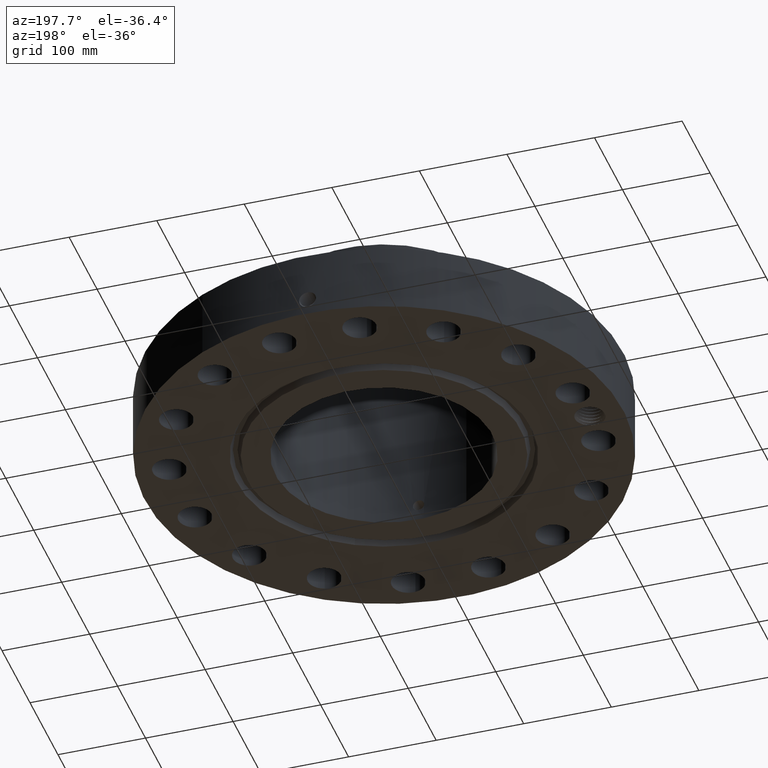
[diagram: clean part render]
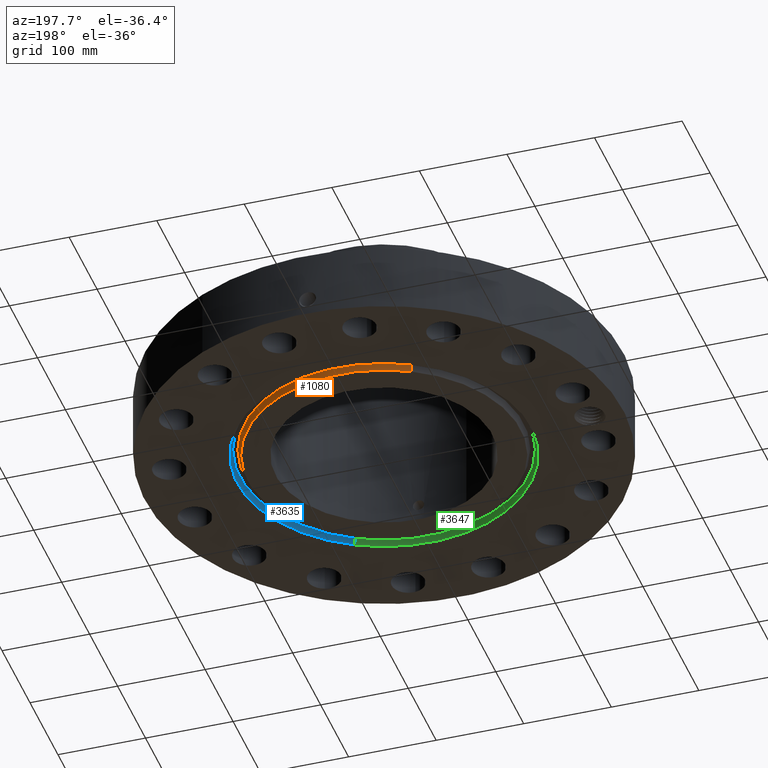
[diagram: same view with three faces highlighted in distinct colors, each labeled with its STEP entity id]
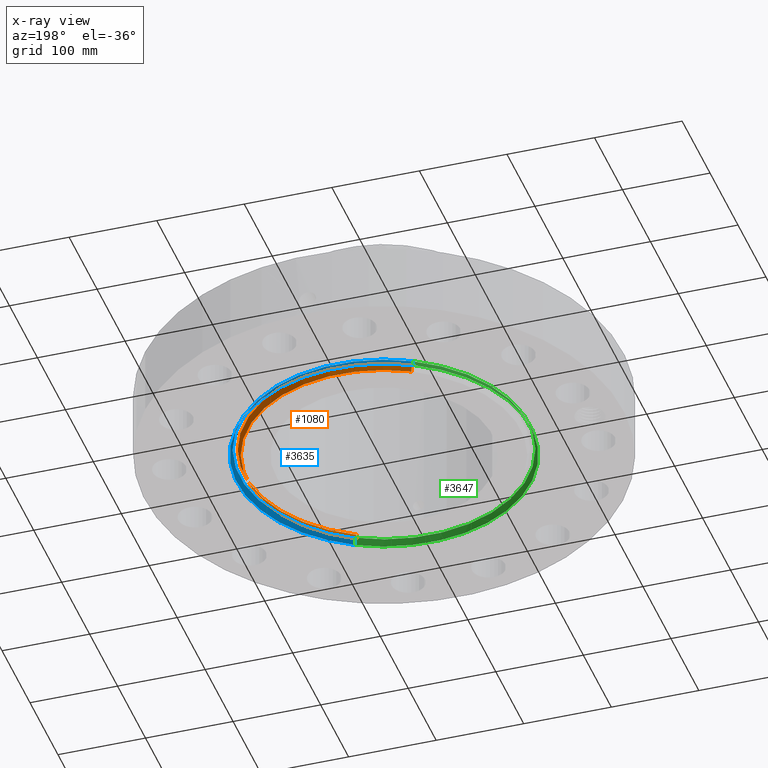
[diagram: x-ray of the same camera — body ghosted, the three highlighted faces saturated]
A machine part, auxiliary view with three faces highlighted in distinct colors.
The next image is the same camera in x-ray (body ghosted, the three faces saturated) — at least one of them is partly hidden behind the body in this view.
Their STEP definitions:

[orange] entity #1080 — the highlighted conical surface has half-angle 23 deg.
#602=AXIS2_PLACEMENT_3D('Circle Axis2P3D',#600,#601,$) ;
#1053=AXIS2_PLACEMENT_3D('Cone Axis2P3D',#1050,#1051,#1052) ;
#1064=AXIS2_PLACEMENT_3D('Circle Axis2P3D',#1062,#1063,$) ;
#600=CARTESIAN_POINT('Axis2P3D Location',(1.1189649382E-015,5.59482469102E-016,0.)) ;
#604=CARTESIAN_POINT('Vertex',(-2.94391251981,5.38879572131,0.)) ;
#606=CARTESIAN_POINT('Vertex',(2.94391251981,-5.38879572131,0.)) ;
#1050=CARTESIAN_POINT('Axis2P3D Location',(0.,0.,-0.0600000000002)) ;
#1055=CARTESIAN_POINT('Line Origine',(-2.97379932392,5.44350314927,0.146860966928)) ;
#1059=CARTESIAN_POINT('Vertex',(-3.00368612803,5.49821057724,0.293721933856)) ;
#1062=CARTESIAN_POINT('Axis2P3D Location',(0.,0.,0.293721933856)) ;
#1066=CARTESIAN_POINT('Vertex',(3.00368612803,-5.49821057724,0.293721933856)) ;
#1069=CARTESIAN_POINT('Line Origine',(2.97379932392,-5.44350314927,0.146860966928)) ;
#601=DIRECTION('Axis2P3D Direction',(0.,0.,-0.0393700787402)) ;
#1051=DIRECTION('Axis2P3D Direction',(0.,0.,0.0393700787402)) ;
#1052=DIRECTION('Axis2P3D XDirection',(-0.0188750212049,0.0345504945626,0.)) ;
#1056=DIRECTION('Vector Direction',(-0.00737505833565,0.0134999537303,0.0362403485611)) ;
#1063=DIRECTION('Axis2P3D Direction',(0.,0.,0.0393700787402)) ;
#1070=DIRECTION('Vector Direction',(0.00737505833565,-0.0134999537303,0.0362403485611)) ;
#1057=VECTOR('Line Direction',#1056,0.0393700787402) ;
#1071=VECTOR('Line Direction',#1070,0.0393700787402) ;
#1075=ORIENTED_EDGE('',*,*,#1061,.F.) ;
#1076=ORIENTED_EDGE('',*,*,#1068,.F.) ;
#1077=ORIENTED_EDGE('',*,*,#1073,.T.) ;
#1078=ORIENTED_EDGE('',*,*,#608,.F.) ;
#1080=ADVANCED_FACE('PartBody',(#1079),#1054,.T.) ;
#603=CIRCLE('generated circle',#602,6.14050000002) ;
#1065=CIRCLE('generated circle',#1064,6.26517756391) ;
#1054=CONICAL_SURFACE('Cone',#1053,6.11503151105,0.401425727959) ;
#608=EDGE_CURVE('',#605,#607,#603,.T.) ;
#1061=EDGE_CURVE('',#1060,#605,#1058,.F.) ;
#1068=EDGE_CURVE('',#1067,#1060,#1065,.T.) ;
#1073=EDGE_CURVE('',#1067,#607,#1072,.F.) ;
#1074=EDGE_LOOP('',(#1075,#1076,#1077,#1078)) ;
#1079=FACE_OUTER_BOUND('',#1074,.T.) ;
#1058=LINE('Line',#1055,#1057) ;
#1072=LINE('Line',#1069,#1071) ;
#605=VERTEX_POINT('',#604) ;
#607=VERTEX_POINT('',#606) ;
#1060=VERTEX_POINT('',#1059) ;
#1067=VERTEX_POINT('',#1066) ;

[blue] entity #3635 — the highlighted conical surface has half-angle 23 deg.
#2609=AXIS2_PLACEMENT_3D('Circle Axis2P3D',#2607,#2608,$) ;
#3608=AXIS2_PLACEMENT_3D('Cone Axis2P3D',#3605,#3606,#3607) ;
#3612=AXIS2_PLACEMENT_3D('Circle Axis2P3D',#3610,#3611,$) ;
#2607=CARTESIAN_POINT('Axis2P3D Location',(0.,0.,0.293721933856)) ;
#2611=CARTESIAN_POINT('Vertex',(3.1089894892,-5.69096708691,0.293721933856)) ;
#2613=CARTESIAN_POINT('Vertex',(-3.1089894892,5.69096708691,0.293721933856)) ;
#3605=CARTESIAN_POINT('Axis2P3D Location',(0.,0.,0.293721933856)) ;
#3610=CARTESIAN_POINT('Axis2P3D Location',(0.,0.,-3.49676543189E-017)) ;
#3614=CARTESIAN_POINT('Vertex',(-3.16876309742,5.80038194284,-3.49676543189E-017)) ;
#3616=CARTESIAN_POINT('Vertex',(3.16876309742,-5.80038194284,-3.49676543189E-017)) ;
#3619=CARTESIAN_POINT('Line Origine',(3.13887629331,-5.74567451487,0.146860966928)) ;
#3624=CARTESIAN_POINT('Line Origine',(-3.13887629331,5.74567451487,0.146860966928)) ;
#2608=DIRECTION('Axis2P3D Direction',(0.,0.,0.0393700787402)) ;
#3606=DIRECTION('Axis2P3D Direction',(-0.,-0.,-0.0393700787402)) ;
#3607=DIRECTION('Axis2P3D XDirection',(0.0188750212049,-0.0345504945626,0.)) ;
#3611=DIRECTION('Axis2P3D Direction',(0.,0.,-0.0393700787402)) ;
#3620=DIRECTION('Vector Direction',(0.00737505833565,-0.0134999537303,-0.0362403485611)) ;
#3625=DIRECTION('Vector Direction',(-0.00737505833565,0.0134999537303,-0.0362403485611)) ;
#3621=VECTOR('Line Direction',#3620,0.0393700787402) ;
#3626=VECTOR('Line Direction',#3625,0.0393700787402) ;
#3630=ORIENTED_EDGE('',*,*,#3618,.T.) ;
#3631=ORIENTED_EDGE('',*,*,#3623,.T.) ;
#3632=ORIENTED_EDGE('',*,*,#2615,.T.) ;
#3633=ORIENTED_EDGE('',*,*,#3628,.F.) ;
#3635=ADVANCED_FACE('PartBody',(#3634),#3609,.F.) ;
#2610=CIRCLE('generated circle',#2609,6.48482243614) ;
#3613=CIRCLE('generated circle',#3612,6.60950000003) ;
#3609=CONICAL_SURFACE('Cone',#3608,6.48482243614,0.401425727959) ;
#2615=EDGE_CURVE('',#2612,#2614,#2610,.T.) ;
#3618=EDGE_CURVE('',#3615,#3617,#3613,.T.) ;
#3623=EDGE_CURVE('',#3617,#2612,#3622,.F.) ;
#3628=EDGE_CURVE('',#3615,#2614,#3627,.F.) ;
#3629=EDGE_LOOP('',(#3630,#3631,#3632,#3633)) ;
#3634=FACE_OUTER_BOUND('',#3629,.T.) ;
#3622=LINE('Line',#3619,#3621) ;
#3627=LINE('Line',#3624,#3626) ;
#2612=VERTEX_POINT('',#2611) ;
#2614=VERTEX_POINT('',#2613) ;
#3615=VERTEX_POINT('',#3614) ;
#3617=VERTEX_POINT('',#3616) ;

[green] entity #3647 — the highlighted conical surface has half-angle 23 deg.
#2635=AXIS2_PLACEMENT_3D('Circle Axis2P3D',#2633,#2634,$) ;
#3608=AXIS2_PLACEMENT_3D('Cone Axis2P3D',#3605,#3606,#3607) ;
#3638=AXIS2_PLACEMENT_3D('Circle Axis2P3D',#3636,#3637,$) ;
#2611=CARTESIAN_POINT('Vertex',(3.1089894892,-5.69096708691,0.293721933856)) ;
#2613=CARTESIAN_POINT('Vertex',(-3.1089894892,5.69096708691,0.293721933856)) ;
#2633=CARTESIAN_POINT('Axis2P3D Location',(0.,0.,0.293721933856)) ;
#3605=CARTESIAN_POINT('Axis2P3D Location',(0.,0.,0.293721933856)) ;
#3614=CARTESIAN_POINT('Vertex',(-3.16876309742,5.80038194284,-3.49676543189E-017)) ;
#3616=CARTESIAN_POINT('Vertex',(3.16876309742,-5.80038194284,-3.49676543189E-017)) ;
#3619=CARTESIAN_POINT('Line Origine',(3.13887629331,-5.74567451487,0.146860966928)) ;
#3624=CARTESIAN_POINT('Line Origine',(-3.13887629331,5.74567451487,0.146860966928)) ;
#3636=CARTESIAN_POINT('Axis2P3D Location',(0.,0.,-3.49676543189E-017)) ;
#2634=DIRECTION('Axis2P3D Direction',(0.,0.,0.0393700787402)) ;
#3606=DIRECTION('Axis2P3D Direction',(-0.,-0.,-0.0393700787402)) ;
#3607=DIRECTION('Axis2P3D XDirection',(0.0188750212049,-0.0345504945626,0.)) ;
#3620=DIRECTION('Vector Direction',(0.00737505833565,-0.0134999537303,-0.0362403485611)) ;
#3625=DIRECTION('Vector Direction',(-0.00737505833565,0.0134999537303,-0.0362403485611)) ;
#3637=DIRECTION('Axis2P3D Direction',(0.,0.,-0.0393700787402)) ;
#3621=VECTOR('Line Direction',#3620,0.0393700787402) ;
#3626=VECTOR('Line Direction',#3625,0.0393700787402) ;
#3642=ORIENTED_EDGE('',*,*,#3640,.T.) ;
#3643=ORIENTED_EDGE('',*,*,#3628,.T.) ;
#3644=ORIENTED_EDGE('',*,*,#2637,.T.) ;
#3645=ORIENTED_EDGE('',*,*,#3623,.F.) ;
#3647=ADVANCED_FACE('PartBody',(#3646),#3609,.F.) ;
#2636=CIRCLE('generated circle',#2635,6.48482243614) ;
#3639=CIRCLE('generated circle',#3638,6.60950000003) ;
#3609=CONICAL_SURFACE('Cone',#3608,6.48482243614,0.401425727959) ;
#2637=EDGE_CURVE('',#2614,#2612,#2636,.T.) ;
#3623=EDGE_CURVE('',#3617,#2612,#3622,.F.) ;
#3628=EDGE_CURVE('',#3615,#2614,#3627,.F.) ;
#3640=EDGE_CURVE('',#3617,#3615,#3639,.T.) ;
#3641=EDGE_LOOP('',(#3642,#3643,#3644,#3645)) ;
#3646=FACE_OUTER_BOUND('',#3641,.T.) ;
#3622=LINE('Line',#3619,#3621) ;
#3627=LINE('Line',#3624,#3626) ;
#2612=VERTEX_POINT('',#2611) ;
#2614=VERTEX_POINT('',#2613) ;
#3615=VERTEX_POINT('',#3614) ;
#3617=VERTEX_POINT('',#3616) ;